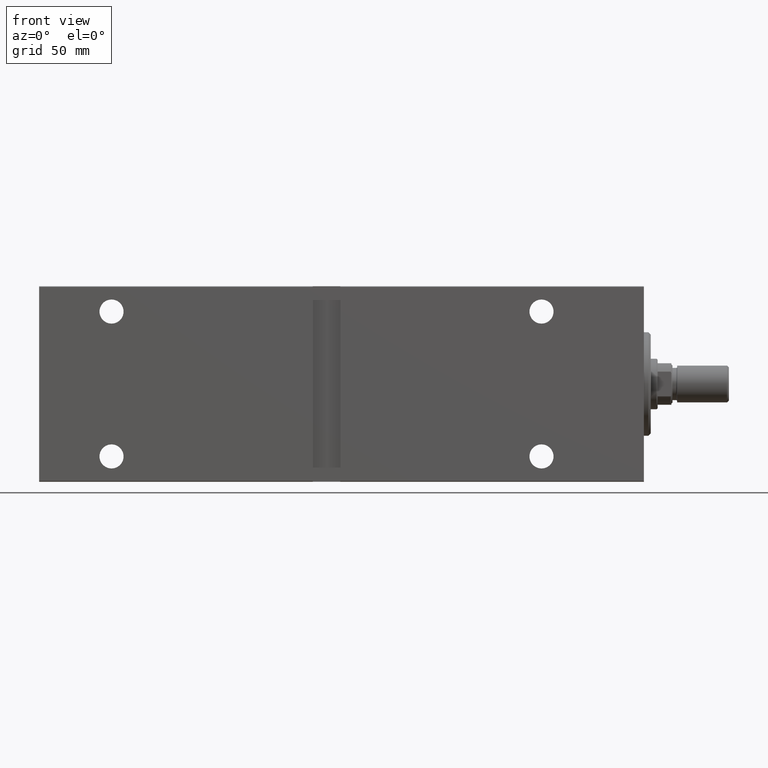
[diagram: clean part render]
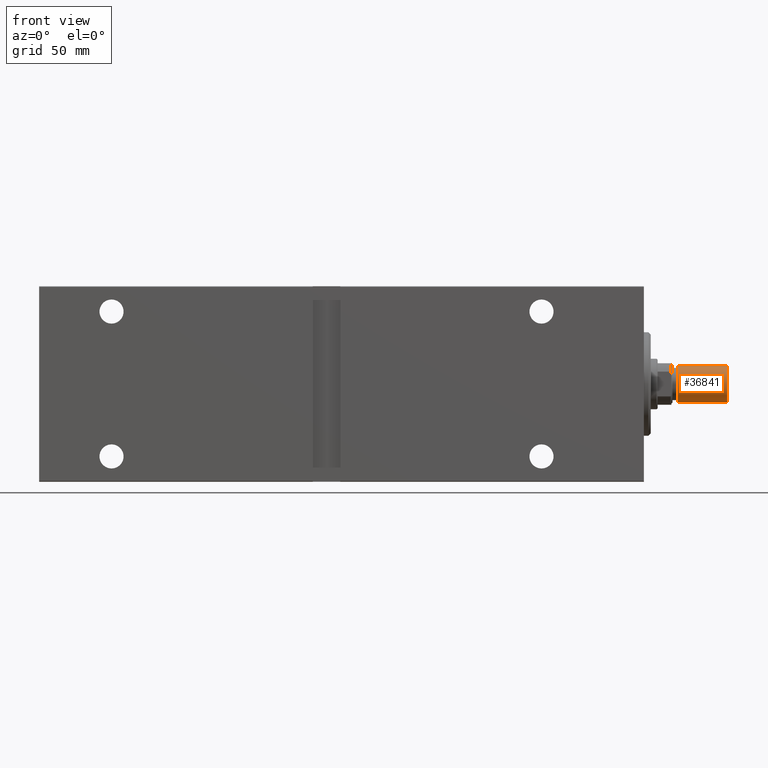
[diagram: same view with one face highlighted and labeled with its STEP entity id]
A machine part, front view. The second image highlights one B-rep face of the part: STEP entity #36841.
In plain terms, the highlighted cylindrical surface (edge-blend (fillet) strip) has radius 8 mm, axis along (1, -0, -0).
Its self-contained STEP definition (entity closure, byte-faithful):
#435 = CIRCLE ( 'NONE', #37024, 8.000000000000000000 ) ;
#7173 = ORIENTED_EDGE ( 'NONE', *, *, #38978, .F. ) ;
#7233 = EDGE_CURVE ( 'NONE', #22974, #11349, #435, .T. ) ;
#8129 = EDGE_LOOP ( 'NONE', ( #14233, #7173, #14801, #38338 ) ) ;
#8506 = DIRECTION ( 'NONE',  ( -1.000000000000000000, 0.000000000000000000, 0.000000000000000000 ) ) ;
#9862 = DIRECTION ( 'NONE',  ( -0.000000000000000000, -0.000000000000000000, -1.000000000000000000 ) ) ;
#11349 = VERTEX_POINT ( 'NONE', #21425 ) ;
#11883 = DIRECTION ( 'NONE',  ( -0.000000000000000000, -0.000000000000000000, 1.000000000000000000 ) ) ;
#12108 = DIRECTION ( 'NONE',  ( 1.000000000000000000, 0.000000000000000000, 0.000000000000000000 ) ) ;
#14233 = ORIENTED_EDGE ( 'NONE', *, *, #33319, .F. ) ;
#14604 = VERTEX_POINT ( 'NONE', #16628 ) ;
#14801 = ORIENTED_EDGE ( 'NONE', *, *, #24598, .T. ) ;
#15397 = CARTESIAN_POINT ( 'NONE',  ( -8.000000000000000000, 0.000000000000000000, 22.50000000000000000 ) ) ;
#15447 = DIRECTION ( 'NONE',  ( 0.000000000000000000, 0.000000000000000000, 1.000000000000000000 ) ) ;
#15894 = CARTESIAN_POINT ( 'NONE',  ( 0.000000000000000000, 0.000000000000000000, 22.50000000000000000 ) ) ;
#16628 = CARTESIAN_POINT ( 'NONE',  ( 8.000000000000000000, 9.797174393178823685E-16, 22.50000000000000000 ) ) ;
#19432 = DIRECTION ( 'NONE',  ( 1.000000000000000000, 0.000000000000000000, 0.000000000000000000 ) ) ;
#21425 = CARTESIAN_POINT ( 'NONE',  ( 8.000000000000000000, 9.797174393178823685E-16, 0.8000000000000055955 ) ) ;
#22908 = DIRECTION ( 'NONE',  ( -0.000000000000000000, -0.000000000000000000, -1.000000000000000000 ) ) ;
#22974 = VERTEX_POINT ( 'NONE', #25404 ) ;
#24598 = EDGE_CURVE ( 'NONE', #40153, #22974, #26656, .T. ) ;
#25404 = CARTESIAN_POINT ( 'NONE',  ( -8.000000000000000000, 0.000000000000000000, 0.8000000000000055955 ) ) ;
#25566 = LINE ( 'NONE', #32397, #30138 ) ;
#26656 = LINE ( 'NONE', #40108, #30613 ) ;
#27391 = AXIS2_PLACEMENT_3D ( 'NONE', #38323, #29062, #8506 ) ;
#27447 = CIRCLE ( 'NONE', #35911, 8.000000000000000000 ) ;
#28898 = CARTESIAN_POINT ( 'NONE',  ( 0.000000000000000000, 0.000000000000000000, 0.8000000000000055955 ) ) ;
#29062 = DIRECTION ( 'NONE',  ( -0.000000000000000000, -0.000000000000000000, -1.000000000000000000 ) ) ;
#30138 = VECTOR ( 'NONE', #22908, 1000.000000000000000 ) ;
#30613 = VECTOR ( 'NONE', #9862, 1000.000000000000000 ) ;
#31918 = CYLINDRICAL_SURFACE ( 'NONE', #27391, 8.000000000000000000 ) ;
#32397 = CARTESIAN_POINT ( 'NONE',  ( 8.000000000000000000, 9.797174393178823685E-16, 22.50000000000000000 ) ) ;
#33319 = EDGE_CURVE ( 'NONE', #14604, #11349, #25566, .T. ) ;
#35450 = FACE_OUTER_BOUND ( 'NONE', #8129, .T. ) ;
#35911 = AXIS2_PLACEMENT_3D ( 'NONE', #15894, #15447, #19432 ) ;
#36841 = ADVANCED_FACE ( 'NONE', ( #35450 ), #31918, .T. ) ;
#37024 = AXIS2_PLACEMENT_3D ( 'NONE', #28898, #11883, #12108 ) ;
#38323 = CARTESIAN_POINT ( 'NONE',  ( 0.000000000000000000, 0.000000000000000000, 22.50000000000000000 ) ) ;
#38338 = ORIENTED_EDGE ( 'NONE', *, *, #7233, .T. ) ;
#38978 = EDGE_CURVE ( 'NONE', #40153, #14604, #27447, .T. ) ;
#40108 = CARTESIAN_POINT ( 'NONE',  ( -8.000000000000000000, 0.000000000000000000, 22.50000000000000000 ) ) ;
#40153 = VERTEX_POINT ( 'NONE', #15397 ) ;